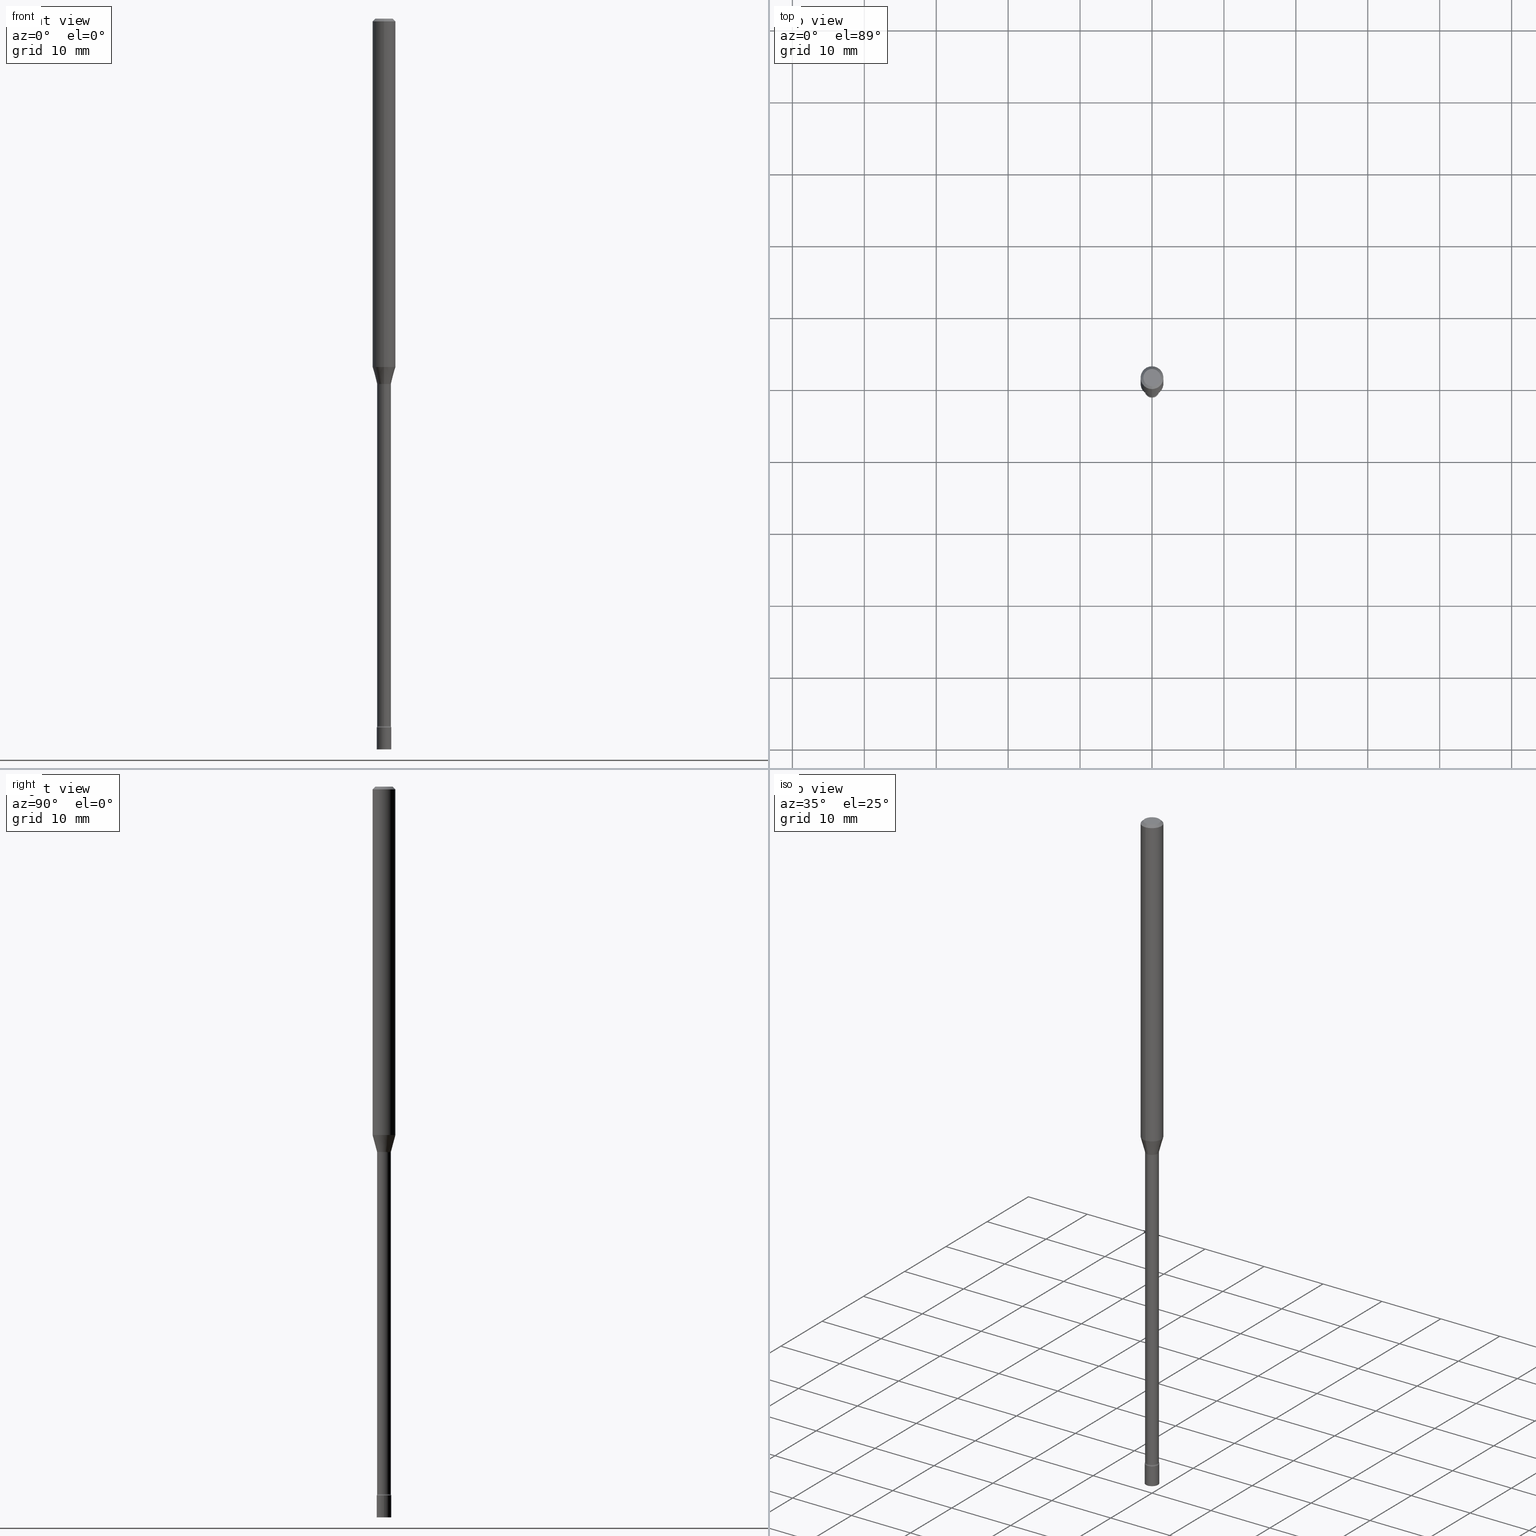
[diagram: canonical four-view strip — front | top / right | iso, engineering-drawing reading convention]
A machine part, canonical four-view strip (front | top / right | iso — engineering-drawing reading convention). The complete STEP part file that produces these views, byte-faithful:
ISO-10303-21;
HEADER;
FILE_DESCRIPTION (( 'STEP AP203' ),
    '1' );
FILE_NAME ('03688.STEP',
    '2024-03-08T22:37:42',
    ( '' ),
    ( '' ),
    'SwSTEP 2.0',
    'SolidWorks 2023',
    '' );
FILE_SCHEMA (( 'CONFIG_CONTROL_DESIGN' ));
ENDSEC;

DATA;
#1 = CARTESIAN_POINT ( 'NONE',  ( -3.673038368462044787E-16, -0.05260000000001375381, -3.871861204020250025 ) ) ;
#2 = AXIS2_PLACEMENT_3D ( 'NONE', #36, #193, #519 ) ;
#3 = ORGANIZATION ( 'UNSPECIFIED', 'UNSPECIFIED', '' ) ;
#4 = EDGE_CURVE ( 'NONE', #508, #461, #64, .T. ) ;
#5 = FACE_OUTER_BOUND ( 'NONE', #246, .T. ) ;
#6 = EDGE_CURVE ( 'NONE', #273, #189, #445, .T. ) ;
#7 = DIRECTION ( 'NONE',  ( -6.982962677686265922E-15, -1.000000000000000000, 3.491483579930689334E-15 ) ) ;
#8 = DIRECTION ( 'NONE',  ( -2.445467241242069311E-29, 3.491483579930688939E-15, 1.000000000000000000 ) ) ;
#9 = DIRECTION ( 'NONE',  ( -6.982962677686266711E-15, -1.000000000000000000, 0.000000000000000000 ) ) ;
#10 = DIRECTION ( 'NONE',  ( -2.445468806185136597E-29, 3.491481338843145583E-15, 1.000000000000000000 ) ) ;
#11 = CIRCLE ( 'NONE', #480, 0.01500000000000002720 ) ;
#12 = DIRECTION ( 'NONE',  ( 1.000000000000000000, -6.982962677686284065E-15, 0.000000000000000000 ) ) ;
#13 = ADVANCED_FACE ( 'NONE', ( #77 ), #206, .T. ) ;
#14 = ORIENTED_EDGE ( 'NONE', *, *, #125, .T. ) ;
#15 = CARTESIAN_POINT ( 'NONE',  ( 0.04000000000000000083, -1.382626610181885731E-14, -3.880000000000000338 ) ) ;
#16 = ORIENTED_EDGE ( 'NONE', *, *, #358, .F. ) ;
#17 = ORIENTED_EDGE ( 'NONE', *, *, #328, .F. ) ;
#18 = CARTESIAN_POINT ( 'NONE',  ( 0.04000000000000000083, -1.424524386248003395E-14, -4.000000000000000000 ) ) ;
#19 = EDGE_LOOP ( 'NONE', ( #72, #285, #184, #74 ) ) ;
#20 = LINE ( 'NONE', #428, #390 ) ;
#21 = ORIENTED_EDGE ( 'NONE', *, *, #520, .T. ) ;
#22 = LINE ( 'NONE', #216, #248 ) ;
#23 = DIRECTION ( 'NONE',  ( -2.445467241242069311E-29, 3.491483579930688939E-15, 1.000000000000000000 ) ) ;
#24 = ORIENTED_EDGE ( 'NONE', *, *, #279, .T. ) ;
#25 = AXIS2_PLACEMENT_3D ( 'NONE', #459, #507, #448 ) ;
#26 = DIRECTION ( 'NONE',  ( -2.445467241242069311E-29, 3.491483579930689334E-15, 1.000000000000000000 ) ) ;
#27 = CIRCLE ( 'NONE', #318, 0.03759999999999999454 ) ;
#28 = DIRECTION ( 'NONE',  ( -2.445468806185136597E-29, 3.491481338843145583E-15, 1.000000000000000000 ) ) ;
#29 = DIRECTION ( 'NONE',  ( -2.445468806185136877E-29, 3.491481338843145188E-15, 1.000000000000000000 ) ) ;
#30 = CALENDAR_DATE ( 2024, 8, 3 ) ;
#31 = FACE_OUTER_BOUND ( 'NONE', #442, .T. ) ;
#32 = CIRCLE ( 'NONE', #269, 0.04000000000000000083 ) ;
#33 = ORIENTED_EDGE ( 'NONE', *, *, #333, .F. ) ;
#34 = CARTESIAN_POINT ( 'NONE',  ( 3.668200861863111078E-31, -5.237225369896044256E-17, -0.01500000000000003067 ) ) ;
#35 = APPLICATION_PROTOCOL_DEFINITION ( 'international standard', 'config_control_design', 1994, #415 ) ;
#36 = CARTESIAN_POINT ( 'NONE',  ( 4.663681943469377038E-29, -6.658510346420442801E-15, -1.907071934891535037 ) ) ;
#37 = AXIS2_PLACEMENT_3D ( 'NONE', #504, #488, #217 ) ;
#38 = APPROVAL_PERSON_ORGANIZATION ( #433, #477, #233 ) ;
#39 = VERTEX_POINT ( 'NONE', #126 ) ;
#40 = EDGE_LOOP ( 'NONE', ( #261, #266, #326, #158 ) ) ;
#41 = CIRCLE ( 'NONE', #108, 0.06250000000000000000 ) ;
#42 = DIRECTION ( 'NONE',  ( -6.982962677686267499E-15, -1.000000000000000000, 0.000000000000000000 ) ) ;
#43 = CARTESIAN_POINT ( 'NONE',  ( 4.886269758092186834E-29, -6.976307161172895427E-15, -1.998092501787273045 ) ) ;
#44 = ADVANCED_BREP_SHAPE_REPRESENTATION ( '03688', ( #154, #339, #258 ), #124 ) ;
#45 = DIRECTION ( 'NONE',  ( -6.982962677686266711E-15, -1.000000000000000000, 3.491483579930689334E-15 ) ) ;
#46 = DIRECTION ( 'NONE',  ( -6.982962677686266711E-15, -1.000000000000000000, 3.491483579930689334E-15 ) ) ;
#47 = CARTESIAN_POINT ( 'NONE',  ( -0.04000000000000000083, -1.347221938073795369E-14, -3.880000000000000338 ) ) ;
#48 = EDGE_LOOP ( 'NONE', ( #368, #24, #323, #199 ) ) ;
#49 = CIRCLE ( 'NONE', #396, 0.04000000000000000083 ) ;
#50 = CARTESIAN_POINT ( 'NONE',  ( 3.668200861863111078E-31, -5.237225369896044256E-17, -0.01500000000000003067 ) ) ;
#51 = DIRECTION ( 'NONE',  ( 1.000000000000000000, -6.982962677686265922E-15, 4.876176775795935793E-29 ) ) ;
#52 = ORIENTED_EDGE ( 'NONE', *, *, #125, .F. ) ;
#53 = FACE_OUTER_BOUND ( 'NONE', #389, .T. ) ;
#54 = ORIENTED_EDGE ( 'NONE', *, *, #228, .T. ) ;
#55 = DIRECTION ( 'NONE',  ( 2.445467241242069311E-29, -3.491483579930688939E-15, -1.000000000000000000 ) ) ;
#56 = LINE ( 'NONE', #222, #444 ) ;
#57 = ORIENTED_EDGE ( 'NONE', *, *, #313, .T. ) ;
#58 = LINE ( 'NONE', #83, #177 ) ;
#59 = PERSON_AND_ORGANIZATION ( #360, #3 ) ;
#60 = ORIENTED_EDGE ( 'NONE', *, *, #470, .F. ) ;
#61 = PERSON_AND_ORGANIZATION_ROLE ( 'creator' ) ;
#62 = ADVANCED_FACE ( 'NONE', ( #400 ), #85, .T. ) ;
#63 =( CONVERSION_BASED_UNIT ( 'INCH', #191 ) LENGTH_UNIT ( ) NAMED_UNIT ( #229 ) );
#64 = CIRCLE ( 'NONE', #362, 0.04749999999999999362 ) ;
#65 = VECTOR ( 'NONE', #29, 39.37007874015748143 ) ;
#66 = LOCAL_TIME ( 17, 37, 42.00000000000000000, #236 ) ;
#67 =( NAMED_UNIT ( * ) PLANE_ANGLE_UNIT ( ) SI_UNIT ( $, .RADIAN. ) );
#68 = ADVANCED_FACE ( 'NONE', ( #163 ), #315, .T. ) ;
#69 = ADVANCED_FACE ( 'NONE', ( #404 ), #225, .F. ) ;
#70 = AXIS2_PLACEMENT_3D ( 'NONE', #495, #135, #298 ) ;
#71 = CONICAL_SURFACE ( 'NONE', #140, 0.06250000000000000000, 0.7853981633974483900 ) ;
#72 = ORIENTED_EDGE ( 'NONE', *, *, #279, .F. ) ;
#73 = CARTESIAN_POINT ( 'NONE',  ( 3.574424759935277553E-16, 0.03811111260565699932, -1.998092501787273045 ) ) ;
#74 = ORIENTED_EDGE ( 'NONE', *, *, #457, .T. ) ;
#75 = VERTEX_POINT ( 'NONE', #332 ) ;
#76 = DIRECTION ( 'NONE',  ( -6.982962677686265922E-15, -1.000000000000000000, 3.491483579930688939E-15 ) ) ;
#77 = FACE_OUTER_BOUND ( 'NONE', #161, .T. ) ;
#78 = CIRCLE ( 'NONE', #384, 0.03760000000000024434 ) ;
#79 = LOCAL_TIME ( 17, 37, 42.00000000000000000, #156 ) ;
#80 = PLANE ( 'NONE',  #149 ) ;
#81 = CARTESIAN_POINT ( 'NONE',  ( 3.668200861863111078E-31, -5.237225369896044256E-17, -0.01500000000000003067 ) ) ;
#82 = DIRECTION ( 'NONE',  ( -2.445467241242069311E-29, 3.491483579930688939E-15, 1.000000000000000000 ) ) ;
#83 = CARTESIAN_POINT ( 'NONE',  ( -2.625593966810044412E-16, -0.03760000000000011944, 1.312797826053943315E-16 ) ) ;
#84 = DIRECTION ( 'NONE',  ( -2.438088387897960049E-29, 3.491481338843145188E-15, 1.000000000000000000 ) ) ;
#85 = CYLINDRICAL_SURFACE ( 'NONE', #287, 0.03760000000000011944 ) ;
#86 = EDGE_LOOP ( 'NONE', ( #94, #492 ) ) ;
#87 = AXIS2_PLACEMENT_3D ( 'NONE', #122, #10, #490 ) ;
#88 = LINE ( 'NONE', #218, #204 ) ;
#89 = ORIENTED_EDGE ( 'NONE', *, *, #256, .T. ) ;
#90 = DIRECTION ( 'NONE',  ( -2.445467241242069311E-29, 3.491483579930688939E-15, 1.000000000000000000 ) ) ;
#91 = ORIENTED_EDGE ( 'NONE', *, *, #256, .F. ) ;
#92 = CARTESIAN_POINT ( 'NONE',  ( 4.886269758092186834E-29, -6.976307161172895427E-15, -1.998092501787273045 ) ) ;
#93 = DIRECTION ( 'NONE',  ( -2.445467241242069311E-29, 3.491483579930688939E-15, 1.000000000000000000 ) ) ;
#94 = ORIENTED_EDGE ( 'NONE', *, *, #240, .T. ) ;
#95 = ADVANCED_FACE ( 'NONE', ( #5 ), #487, .T. ) ;
#96 = DIRECTION ( 'NONE',  ( -2.445467241242069311E-29, 3.491483579930689334E-15, 1.000000000000000000 ) ) ;
#97 = CALENDAR_DATE ( 2024, 8, 3 ) ;
#98 = AXIS2_PLACEMENT_3D ( 'NONE', #1, #324, #482 ) ;
#99 = CARTESIAN_POINT ( 'NONE',  ( 0.000000000000000000, 0.000000000000000000, 0.000000000000000000 ) ) ;
#100 = FACE_OUTER_BOUND ( 'NONE', #86, .T. ) ;
#101 =( LENGTH_UNIT ( ) NAMED_UNIT ( * ) SI_UNIT ( $, .METRE. ) );
#102 = EDGE_CURVE ( 'NONE', #189, #355, #353, .T. ) ;
#103 = DIRECTION ( 'NONE',  ( 1.000000000000000000, -6.982962677686284065E-15, 0.000000000000000000 ) ) ;
#104 = DESIGN_CONTEXT ( 'detailed design', #173, 'design' ) ;
#105 = CALENDAR_DATE ( 2024, 8, 3 ) ;
#106 = CARTESIAN_POINT ( 'NONE',  ( 4.440892098500625669E-16, 0.06250000000000000000, -2.182177237456680587E-16 ) ) ;
#107 = AXIS2_PLACEMENT_3D ( 'NONE', #249, #294, #7 ) ;
#108 = AXIS2_PLACEMENT_3D ( 'NONE', #50, #465, #348 ) ;
#109 = AXIS2_PLACEMENT_3D ( 'NONE', #413, #142, #103 ) ;
#110 = EDGE_CURVE ( 'NONE', #189, #425, #342, .T. ) ;
#111 = CALENDAR_DATE ( 2024, 8, 3 ) ;
#112 = EDGE_CURVE ( 'NONE', #247, #425, #309, .T. ) ;
#113 = ADVANCED_FACE ( 'NONE', ( #129 ), #80, .T. ) ;
#114 = ORIENTED_EDGE ( 'NONE', *, *, #164, .F. ) ;
#115 = DIRECTION ( 'NONE',  ( -2.445467241242069311E-29, 3.491483579930688939E-15, 1.000000000000000000 ) ) ;
#116 = CIRCLE ( 'NONE', #153, 0.03811111260566397291 ) ;
#117 = ORIENTED_EDGE ( 'NONE', *, *, #151, .T. ) ;
#118 = ADVANCED_FACE ( 'NONE', ( #289 ), #299, .F. ) ;
#119 = DATE_AND_TIME ( #321, #79 ) ;
#120 = AXIS2_PLACEMENT_3D ( 'NONE', #81, #365, #411 ) ;
#121 = TOROIDAL_SURFACE ( 'NONE', #159, 0.05260000000000022990, 0.01499999999999998557 ) ;
#122 = CARTESIAN_POINT ( 'NONE',  ( 0.000000000000000000, 0.000000000000000000, 0.000000000000000000 ) ) ;
#123 = ADVANCED_FACE ( 'NONE', ( #349 ), #376, .T. ) ;
#124 =( GEOMETRIC_REPRESENTATION_CONTEXT ( 3 ) GLOBAL_UNCERTAINTY_ASSIGNED_CONTEXT ( ( #325 ) ) GLOBAL_UNIT_ASSIGNED_CONTEXT ( ( #63, #67, #307 ) ) REPRESENTATION_CONTEXT ( 'NONE', 'WORKASPACE' ) );
#125 = EDGE_CURVE ( 'NONE', #304, #505, #49, .T. ) ;
#126 = CARTESIAN_POINT ( 'NONE',  ( 2.671640686458930339E-16, 0.03759999999999300013, -2.001974787463811190 ) ) ;
#127 = CARTESIAN_POINT ( 'NONE',  ( -2.625593966809106161E-16, -0.03760000000001376130, -3.871861204020250025 ) ) ;
#128 = CARTESIAN_POINT ( 'NONE',  ( -4.364351673553912750E-16, -0.06250000000000005551, -0.01499999999999981209 ) ) ;
#129 = FACE_OUTER_BOUND ( 'NONE', #347, .T. ) ;
#130 = ORIENTED_EDGE ( 'NONE', *, *, #112, .F. ) ;
#131 = DIRECTION ( 'NONE',  ( -6.982962677686266711E-15, -1.000000000000000000, 0.000000000000000000 ) ) ;
#132 = ORIENTED_EDGE ( 'NONE', *, *, #369, .T. ) ;
#133 = ADVANCED_FACE ( 'NONE', ( #100 ), #392, .F. ) ;
#134 = DIRECTION ( 'NONE',  ( 1.839019923739596371E-15, 0.2588190451025244032, 0.9659258262890673130 ) ) ;
#135 = DIRECTION ( 'NONE',  ( 2.438088387897960049E-29, -3.491481338843145188E-15, -1.000000000000000000 ) ) ;
#136 = VECTOR ( 'NONE', #134, 39.37007874015748143 ) ;
#137 = ORIENTED_EDGE ( 'NONE', *, *, #110, .F. ) ;
#138 = AXIS2_PLACEMENT_3D ( 'NONE', #180, #23, #265 ) ;
#139 = DIRECTION ( 'NONE',  ( -4.851104656540964275E-15, -0.7071067811865500152, -0.7071067811865450192 ) ) ;
#140 = AXIS2_PLACEMENT_3D ( 'NONE', #378, #55, #260 ) ;
#141 = ORIENTED_EDGE ( 'NONE', *, *, #102, .F. ) ;
#142 = DIRECTION ( 'NONE',  ( -2.445468806185136597E-29, 3.491481338843145583E-15, 1.000000000000000000 ) ) ;
#143 = ORIENTED_EDGE ( 'NONE', *, *, #358, .T. ) ;
#144 = CARTESIAN_POINT ( 'NONE',  ( 2.756905814750144804E-16, 0.03759999999998672737, -3.871861204020250025 ) ) ;
#145 = DIRECTION ( 'NONE',  ( -2.445467241242069311E-29, 3.491483579930688939E-15, 1.000000000000000000 ) ) ;
#146 = DIRECTION ( 'NONE',  ( 6.982962677686265922E-15, 1.000000000000000000, -3.491483579930689334E-15 ) ) ;
#147 = ORIENTED_EDGE ( 'NONE', *, *, #157, .F. ) ;
#148 = APPROVAL_STATUS ( 'not_yet_approved' ) ;
#149 = AXIS2_PLACEMENT_3D ( 'NONE', #450, #84, #172 ) ;
#150 = APPROVAL_DATE_TIME ( #274, #477 ) ;
#151 = EDGE_CURVE ( 'NONE', #481, #296, #78, .T. ) ;
#152 = APPROVAL_DATE_TIME ( #426, #441 ) ;
#153 = AXIS2_PLACEMENT_3D ( 'NONE', #303, #93, #417 ) ;
#154 = MANIFOLD_SOLID_BREP ( 'Body-Move/Copy2[1]', #352 ) ;
#155 = DIRECTION ( 'NONE',  ( 7.105427357601001859E-15, 1.000000000000000000, 0.000000000000000000 ) ) ;
#156 = COORDINATED_UNIVERSAL_TIME_OFFSET ( 5, 0, .BEHIND. ) ;
#157 = EDGE_CURVE ( 'NONE', #223, #267, #32, .T. ) ;
#158 = ORIENTED_EDGE ( 'NONE', *, *, #235, .F. ) ;
#159 = AXIS2_PLACEMENT_3D ( 'NONE', #458, #499, #483 ) ;
#160 = CC_DESIGN_DATE_AND_TIME_ASSIGNMENT ( #316, #472, ( #427 ) ) ;
#161 = EDGE_LOOP ( 'NONE', ( #117, #451, #196, #301 ) ) ;
#162 = EDGE_CURVE ( 'NONE', #479, #304, #436, .T. ) ;
#163 = FACE_OUTER_BOUND ( 'NONE', #40, .T. ) ;
#164 = EDGE_CURVE ( 'NONE', #374, #505, #463, .T. ) ;
#165 = DIRECTION ( 'NONE',  ( -6.982962677686265922E-15, -1.000000000000000000, 3.491483579930688939E-15 ) ) ;
#166 = CARTESIAN_POINT ( 'NONE',  ( 9.488412896019229408E-29, -1.354695629013107419E-14, -3.880000000000000338 ) ) ;
#167 = VECTOR ( 'NONE', #449, 39.37007874015748143 ) ;
#168 = CARTESIAN_POINT ( 'NONE',  ( 4.886269758092186834E-29, -6.976307161172895427E-15, -1.998092501787273045 ) ) ;
#169 = CARTESIAN_POINT ( 'NONE',  ( -0.04000000000000000083, 2.842170943040400803E-16, -1.967574036101962509E-30 ) ) ;
#170 = DIRECTION ( 'NONE',  ( 4.937700262164548042E-15, 0.7071067811865451302, -0.7071067811865499042 ) ) ;
#171 = DIRECTION ( 'NONE',  ( -2.445467241242069311E-29, 3.491483579930688939E-15, 1.000000000000000000 ) ) ;
#172 = DIRECTION ( 'NONE',  ( 1.000000000000000000, -6.982962677686265922E-15, 4.876176775795935793E-29 ) ) ;
#173 = APPLICATION_CONTEXT ( 'configuration controlled 3d designs of mechanical parts and assemblies' ) ;
#174 = CARTESIAN_POINT ( 'NONE',  ( 4.895763760535303635E-29, -6.989862097865126997E-15, -2.001974787463811190 ) ) ;
#175 = ORIENTED_EDGE ( 'NONE', *, *, #327, .T. ) ;
#176 = CYLINDRICAL_SURFACE ( 'NONE', #87, 0.04000000000000000083 ) ;
#177 = VECTOR ( 'NONE', #96, 39.37007874015748143 ) ;
#178 = DIRECTION ( 'NONE',  ( 1.000000000000000000, -7.105427357601001070E-15, 4.926315535987489178E-29 ) ) ;
#179 = ORIENTED_EDGE ( 'NONE', *, *, #327, .F. ) ;
#180 = CARTESIAN_POINT ( 'NONE',  ( 4.663681943469377038E-29, -6.658510346420442801E-15, -1.907071934891535037 ) ) ;
#181 = EDGE_LOOP ( 'NONE', ( #377, #412, #130, #407 ) ) ;
#182 = DIRECTION ( 'NONE',  ( -6.982962677686266711E-15, -1.000000000000000000, 0.000000000000000000 ) ) ;
#183 = ADVANCED_FACE ( 'NONE', ( #31 ), #468, .T. ) ;
#184 = ORIENTED_EDGE ( 'NONE', *, *, #286, .T. ) ;
#185 = DATE_TIME_ROLE ( 'classification_date' ) ;
#186 = AXIS2_PLACEMENT_3D ( 'NONE', #398, #361, #155 ) ;
#187 = AXIS2_PLACEMENT_3D ( 'NONE', #416, #227, #264 ) ;
#188 = CARTESIAN_POINT ( 'NONE',  ( 2.842170943041348422E-16, 0.03999999999998644223, -3.880000000000000338 ) ) ;
#189 = VERTEX_POINT ( 'NONE', #322 ) ;
#190 = EDGE_CURVE ( 'NONE', #355, #247, #320, .T. ) ;
#191 = LENGTH_MEASURE_WITH_UNIT ( LENGTH_MEASURE( 0.02539999999999999897 ), #101 );
#192 = DIRECTION ( 'NONE',  ( -1.807323732225326195E-15, -0.2588190451025176309, 0.9659258262890690894 ) ) ;
#193 = DIRECTION ( 'NONE',  ( -2.445467241242069311E-29, 3.491483579930688939E-15, 1.000000000000000000 ) ) ;
#194 = AXIS2_PLACEMENT_3D ( 'NONE', #255, #28, #12 ) ;
#195 = CC_DESIGN_APPROVAL ( #477, ( #386 ) ) ;
#196 = ORIENTED_EDGE ( 'NONE', *, *, #457, .F. ) ;
#197 = EDGE_CURVE ( 'NONE', #355, #189, #501, .T. ) ;
#198 = DIRECTION ( 'NONE',  ( 1.000000000000000000, -6.982962677686284065E-15, 0.000000000000000000 ) ) ;
#199 = ORIENTED_EDGE ( 'NONE', *, *, #286, .F. ) ;
#200 = ORIENTED_EDGE ( 'NONE', *, *, #470, .T. ) ;
#201 = ORIENTED_EDGE ( 'NONE', *, *, #6, .T. ) ;
#202 = AXIS2_PLACEMENT_3D ( 'NONE', #174, #341, #408 ) ;
#203 = CARTESIAN_POINT ( 'NONE',  ( 0.000000000000000000, 0.000000000000000000, 0.000000000000000000 ) ) ;
#204 = VECTOR ( 'NONE', #139, 39.37007874015748143 ) ;
#205 = CARTESIAN_POINT ( 'NONE',  ( -3.673038368462486549E-16, -0.05260000000000698839, -2.001974787463810745 ) ) ;
#206 = CYLINDRICAL_SURFACE ( 'NONE', #107, 0.03760000000000011944 ) ;
#207 = APPROVAL_ROLE ( '' ) ;
#208 = CC_DESIGN_PERSON_AND_ORGANIZATION_ASSIGNMENT ( #516, #395, ( #220 ) ) ;
#209 = DIRECTION ( 'NONE',  ( -2.445467241242069311E-29, 3.491483579930688939E-15, 1.000000000000000000 ) ) ;
#210 = CARTESIAN_POINT ( 'NONE',  ( 9.468515796309946539E-29, -1.351853114042745669E-14, -3.871861204020250025 ) ) ;
#211 = CARTESIAN_POINT ( 'NONE',  ( 9.468509737067598490E-29, -1.351853981760736890E-14, -3.871861204020250025 ) ) ;
#212 = PLANE ( 'NONE',  #25 ) ;
#213 = AXIS2_PLACEMENT_3D ( 'NONE', #99, #354, #76 ) ;
#214 = CC_DESIGN_SECURITY_CLASSIFICATION ( #486, ( #386 ) ) ;
#215 = ORIENTED_EDGE ( 'NONE', *, *, #157, .T. ) ;
#216 = CARTESIAN_POINT ( 'NONE',  ( 2.671640686457984692E-16, 0.03760000000000011944, -1.312797826053943315E-16 ) ) ;
#217 = DIRECTION ( 'NONE',  ( -6.982962677686265922E-15, -1.000000000000000000, 3.491483579930688939E-15 ) ) ;
#218 = CARTESIAN_POINT ( 'NONE',  ( -4.287811248607203282E-16, -0.06250000000000005551, -0.01499999999999981209 ) ) ;
#219 = ORIENTED_EDGE ( 'NONE', *, *, #6, .F. ) ;
#220 = PRODUCT ( '03688', '03688', '', ( #314 ) ) ;
#221 = FACE_OUTER_BOUND ( 'NONE', #343, .T. ) ;
#222 = CARTESIAN_POINT ( 'NONE',  ( 4.364351673553919652E-16, 0.06249999999999995143, -0.01500000000000024751 ) ) ;
#223 = VERTEX_POINT ( 'NONE', #460 ) ;
#224 = CARTESIAN_POINT ( 'NONE',  ( 0.04000000000000000083, -2.793185071074506290E-16, 1.950470710318374387E-30 ) ) ;
#225 = TOROIDAL_SURFACE ( 'NONE', #363, 0.05260000000000022990, 0.01499999999999998557 ) ;
#226 = CIRCLE ( 'NONE', #330, 0.04749999999999999362 ) ;
#227 = DIRECTION ( 'NONE',  ( -2.445467241242069311E-29, 3.491483579930688939E-15, 1.000000000000000000 ) ) ;
#228 = EDGE_CURVE ( 'NONE', #273, #75, #116, .T. ) ;
#229 = DIMENSIONAL_EXPONENTS ( 1.000000000000000000, 0.000000000000000000, 0.000000000000000000, 0.000000000000000000, 0.000000000000000000, 0.000000000000000000, 0.000000000000000000 ) ;
#230 = DIRECTION ( 'NONE',  ( -2.445467241242069311E-29, 3.491483579930688939E-15, 1.000000000000000000 ) ) ;
#231 = DATE_AND_TIME ( #97, #502 ) ;
#232 = ORIENTED_EDGE ( 'NONE', *, *, #430, .T. ) ;
#233 = APPROVAL_ROLE ( '' ) ;
#234 = ORIENTED_EDGE ( 'NONE', *, *, #282, .F. ) ;
#235 = EDGE_CURVE ( 'NONE', #461, #425, #56, .T. ) ;
#236 = COORDINATED_UNIVERSAL_TIME_OFFSET ( 5, 0, .BEHIND. ) ;
#237 = CIRCLE ( 'NONE', #194, 0.04000000000000000083 ) ;
#238 = ADVANCED_FACE ( 'NONE', ( #335 ), #176, .T. ) ;
#239 = APPROVAL_STATUS ( 'not_yet_approved' ) ;
#240 = EDGE_CURVE ( 'NONE', #461, #508, #226, .T. ) ;
#241 = PERSON_AND_ORGANIZATION ( #360, #3 ) ;
#242 = DIRECTION ( 'NONE',  ( 2.445467241242068750E-29, -3.491483579930689334E-15, -1.000000000000000000 ) ) ;
#243 = CIRCLE ( 'NONE', #186, 0.01500000000000002720 ) ;
#244 = CARTESIAN_POINT ( 'NONE',  ( -4.364351673553916201E-16, -0.06250000000000000000, 2.182177237456680587E-16 ) ) ;
#245 = DIRECTION ( 'NONE',  ( -2.445468806185136597E-29, 3.491481338843145583E-15, 1.000000000000000000 ) ) ;
#246 = EDGE_LOOP ( 'NONE', ( #397, #453, #366, #52 ) ) ;
#247 = VERTEX_POINT ( 'NONE', #128 ) ;
#248 = VECTOR ( 'NONE', #337, 39.37007874015748143 ) ;
#249 = CARTESIAN_POINT ( 'NONE',  ( 0.000000000000000000, 0.000000000000000000, 0.000000000000000000 ) ) ;
#250 = CC_DESIGN_APPROVAL ( #441, ( #427 ) ) ;
#251 = DIRECTION ( 'NONE',  ( -2.445467241242069311E-29, 3.491483579930688939E-15, 1.000000000000000000 ) ) ;
#252 = APPROVAL ( #148, 'UNSPECIFIED' ) ;
#253 = DIRECTION ( 'NONE',  ( 7.105427357601001859E-15, 1.000000000000000000, 0.000000000000000000 ) ) ;
#254 = EDGE_LOOP ( 'NONE', ( #60, #385, #259, #215 ) ) ;
#255 = CARTESIAN_POINT ( 'NONE',  ( 9.781875224740546387E-29, -1.396592535537258233E-14, -4.000000000000000000 ) ) ;
#256 = EDGE_CURVE ( 'NONE', #267, #223, #431, .T. ) ;
#257 = AXIS2_PLACEMENT_3D ( 'NONE', #291, #447, #51 ) ;
#258 = AXIS2_PLACEMENT_3D ( 'NONE', #514, #312, #271 ) ;
#259 = ORIENTED_EDGE ( 'NONE', *, *, #282, .T. ) ;
#260 = DIRECTION ( 'NONE',  ( 6.982962677686265922E-15, 1.000000000000000000, -3.483106191921935554E-15 ) ) ;
#261 = ORIENTED_EDGE ( 'NONE', *, *, #4, .F. ) ;
#262 = CARTESIAN_POINT ( 'NONE',  ( 4.895766893511868006E-29, -6.989857611264368100E-15, -2.001974787463811190 ) ) ;
#263 = ORIENTED_EDGE ( 'NONE', *, *, #235, .T. ) ;
#264 = DIRECTION ( 'NONE',  ( -6.982962677686265922E-15, -1.000000000000000000, 3.491483579930688939E-15 ) ) ;
#265 = DIRECTION ( 'NONE',  ( -6.982962677686265922E-15, -1.000000000000000000, 4.370956789862821150E-15 ) ) ;
#266 = ORIENTED_EDGE ( 'NONE', *, *, #506, .T. ) ;
#267 = VERTEX_POINT ( 'NONE', #188 ) ;
#268 = DIRECTION ( 'NONE',  ( -6.982962677686266711E-15, -1.000000000000000000, 0.000000000000000000 ) ) ;
#269 = AXIS2_PLACEMENT_3D ( 'NONE', #166, #115, #281 ) ;
#270 = LOCAL_TIME ( 17, 37, 42.00000000000000000, #424 ) ;
#271 = DIRECTION ( 'NONE',  ( 1.000000000000000000, 0.000000000000000000, 0.000000000000000000 ) ) ;
#272 = ORIENTED_EDGE ( 'NONE', *, *, #240, .F. ) ;
#273 = VERTEX_POINT ( 'NONE', #73 ) ;
#274 = DATE_AND_TIME ( #111, #66 ) ;
#275 = CLOSED_SHELL ( 'NONE', ( #293, #13, #69, #68, #474, #394, #467, #183, #515, #133, #357, #319, #62, #118 ) ) ;
#276 = CIRCLE ( 'NONE', #202, 0.03759999999999999454 ) ;
#277 = CC_DESIGN_DATE_AND_TIME_ASSIGNMENT ( #231, #185, ( #486 ) ) ;
#278 = PERSON_AND_ORGANIZATION_ROLE ( 'creator' ) ;
#279 = EDGE_CURVE ( 'NONE', #273, #39, #243, .T. ) ;
#280 = ORIENTED_EDGE ( 'NONE', *, *, #506, .F. ) ;
#281 = DIRECTION ( 'NONE',  ( -6.982962677686265922E-15, -1.000000000000000000, 0.000000000000000000 ) ) ;
#282 = EDGE_CURVE ( 'NONE', #481, #223, #344, .T. ) ;
#283 = CIRCLE ( 'NONE', #423, 0.04000000000000000083 ) ;
#284 = SHAPE_DEFINITION_REPRESENTATION ( #373, #44 ) ;
#285 = ORIENTED_EDGE ( 'NONE', *, *, #369, .F. ) ;
#286 = EDGE_CURVE ( 'NONE', #75, #471, #11, .T. ) ;
#287 = AXIS2_PLACEMENT_3D ( 'NONE', #203, #251, #338 ) ;
#288 = AXIS2_PLACEMENT_3D ( 'NONE', #34, #443, #491 ) ;
#289 = FACE_OUTER_BOUND ( 'NONE', #19, .T. ) ;
#290 = AXIS2_PLACEMENT_3D ( 'NONE', #92, #375, #268 ) ;
#291 = CARTESIAN_POINT ( 'NONE',  ( 0.000000000000000000, 0.000000000000000000, 0.000000000000000000 ) ) ;
#292 = CARTESIAN_POINT ( 'NONE',  ( 9.468509737067598490E-29, -1.351853981760736890E-14, -3.871861204020250025 ) ) ;
#293 = ADVANCED_FACE ( 'NONE', ( #329 ), #454, .F. ) ;
#294 = DIRECTION ( 'NONE',  ( -2.445467241242069311E-29, 3.491483579930688939E-15, 1.000000000000000000 ) ) ;
#295 = CARTESIAN_POINT ( 'NONE',  ( 7.070776166625158470E-46, -1.009520735620161007E-31, -2.891380447621070331E-17 ) ) ;
#296 = VERTEX_POINT ( 'NONE', #144 ) ;
#297 = CARTESIAN_POINT ( 'NONE',  ( -3.773273898774340269E-16, -0.04749999999999999362, 1.369316655704970176E-16 ) ) ;
#298 = DIRECTION ( 'NONE',  ( -1.000000000000000000, 6.982962677686265922E-15, -4.876176775795935793E-29 ) ) ;
#299 = TOROIDAL_SURFACE ( 'NONE', #37, 0.05260000000000000092, 0.01500000000000002720 ) ;
#300 = LOCAL_TIME ( 17, 37, 42.00000000000000000, #473 ) ;
#301 = ORIENTED_EDGE ( 'NONE', *, *, #430, .F. ) ;
#302 = DIRECTION ( 'NONE',  ( -2.445467241242069311E-29, 3.491483579930688939E-15, 1.000000000000000000 ) ) ;
#303 = CARTESIAN_POINT ( 'NONE',  ( 4.886269758092186834E-29, -6.976307161172895427E-15, -1.998092501787273045 ) ) ;
#304 = VERTEX_POINT ( 'NONE', #47 ) ;
#305 = CARTESIAN_POINT ( 'NONE',  ( 3.840629472727447874E-16, 0.04749999999999999362, -1.947592745229184119E-16 ) ) ;
#306 = DIRECTION ( 'NONE',  ( -2.445467241242069311E-29, 3.491483579930689334E-15, 1.000000000000000000 ) ) ;
#307 =( NAMED_UNIT ( * ) SI_UNIT ( $, .STERADIAN. ) SOLID_ANGLE_UNIT ( ) );
#308 = ORIENTED_EDGE ( 'NONE', *, *, #520, .F. ) ;
#309 = CIRCLE ( 'NONE', #288, 0.06250000000000000000 ) ;
#310 = PERSON_AND_ORGANIZATION ( #360, #3 ) ;
#311 = FACE_OUTER_BOUND ( 'NONE', #254, .T. ) ;
#312 = DIRECTION ( 'NONE',  ( 0.000000000000000000, 0.000000000000000000, 1.000000000000000000 ) ) ;
#313 = EDGE_CURVE ( 'NONE', #75, #355, #20, .T. ) ;
#314 = MECHANICAL_CONTEXT ( 'NONE', #415, 'mechanical' ) ;
#315 = CONICAL_SURFACE ( 'NONE', #120, 0.06250000000000000000, 0.7853981633974483900 ) ;
#316 = DATE_AND_TIME ( #105, #270 ) ;
#317 = VECTOR ( 'NONE', #26, 39.37007874015748143 ) ;
#318 = AXIS2_PLACEMENT_3D ( 'NONE', #381, #145, #446 ) ;
#319 = ADVANCED_FACE ( 'NONE', ( #311 ), #121, .F. ) ;
#320 = LINE ( 'NONE', #244, #317 ) ;
#321 = CALENDAR_DATE ( 2024, 8, 3 ) ;
#322 = CARTESIAN_POINT ( 'NONE',  ( 4.440892098501088631E-16, 0.06249999999999330397, -1.907071934891535259 ) ) ;
#323 = ORIENTED_EDGE ( 'NONE', *, *, #333, .T. ) ;
#324 = DIRECTION ( 'NONE',  ( -1.000000000000000000, 6.982962677686265922E-15, -4.883557194083112340E-29 ) ) ;
#325 = UNCERTAINTY_MEASURE_WITH_UNIT (LENGTH_MEASURE( 1.000000000000000082E-05 ), #63, 'distance_accuracy_value', 'NONE');
#326 = ORIENTED_EDGE ( 'NONE', *, *, #112, .T. ) ;
#327 = EDGE_CURVE ( 'NONE', #505, #304, #283, .T. ) ;
#328 = EDGE_CURVE ( 'NONE', #479, #374, #237, .T. ) ;
#329 = FACE_OUTER_BOUND ( 'NONE', #48, .T. ) ;
#330 = AXIS2_PLACEMENT_3D ( 'NONE', #295, #209, #45 ) ;
#331 = CIRCLE ( 'NONE', #410, 0.03760000000000024434 ) ;
#332 = CARTESIAN_POINT ( 'NONE',  ( -2.661284769304012829E-16, -0.03811111260567094650, -1.998092501787273045 ) ) ;
#333 = EDGE_CURVE ( 'NONE', #39, #471, #276, .T. ) ;
#334 = CARTESIAN_POINT ( 'NONE',  ( 4.440892098501094548E-16, 0.06249999999999995143, -0.01500000000000024751 ) ) ;
#335 = FACE_OUTER_BOUND ( 'NONE', #379, .T. ) ;
#336 = ORIENTED_EDGE ( 'NONE', *, *, #190, .T. ) ;
#337 = DIRECTION ( 'NONE',  ( -2.445467241242069311E-29, 3.491483579930689334E-15, 1.000000000000000000 ) ) ;
#338 = DIRECTION ( 'NONE',  ( -6.982962677686265922E-15, -1.000000000000000000, 3.491483579930689334E-15 ) ) ;
#339 = MANIFOLD_SOLID_BREP ( 'Body-Move/Copy2[2]', #275 ) ;
#340 = ORIENTED_EDGE ( 'NONE', *, *, #162, .T. ) ;
#341 = DIRECTION ( 'NONE',  ( -2.445467241242069311E-29, 3.491483579930688939E-15, 1.000000000000000000 ) ) ;
#342 = LINE ( 'NONE', #106, #484 ) ;
#343 = EDGE_LOOP ( 'NONE', ( #147, #91 ) ) ;
#344 = CIRCLE ( 'NONE', #98, 0.01499999999999998557 ) ;
#345 = EDGE_LOOP ( 'NONE', ( #440, #418, #232, #33 ) ) ;
#346 = DIRECTION ( 'NONE',  ( 1.000000000000000000, -6.982962677686284065E-15, 0.000000000000000000 ) ) ;
#347 = EDGE_LOOP ( 'NONE', ( #175, #14 ) ) ;
#348 = DIRECTION ( 'NONE',  ( -6.982962677686265922E-15, -1.000000000000000000, 3.483106191921935554E-15 ) ) ;
#349 = FACE_OUTER_BOUND ( 'NONE', #399, .T. ) ;
#350 = CC_DESIGN_PERSON_AND_ORGANIZATION_ASSIGNMENT ( #59, #429, ( #386 ) ) ;
#351 = PERSON_AND_ORGANIZATION ( #360, #3 ) ;
#352 = CLOSED_SHELL ( 'NONE', ( #238, #113, #95, #123 ) ) ;
#353 = CIRCLE ( 'NONE', #2, 0.06250000000000000000 ) ;
#354 = DIRECTION ( 'NONE',  ( -2.445467241242069311E-29, 3.491483579930688939E-15, 1.000000000000000000 ) ) ;
#355 = VERTEX_POINT ( 'NONE', #405 ) ;
#356 = CC_DESIGN_PERSON_AND_ORGANIZATION_ASSIGNMENT ( #466, #61, ( #427 ) ) ;
#357 = ADVANCED_FACE ( 'NONE', ( #221 ), #212, .F. ) ;
#358 = EDGE_CURVE ( 'NONE', #425, #247, #41, .T. ) ;
#359 = APPLICATION_PROTOCOL_DEFINITION ( 'international standard', 'config_control_design', 1994, #173 ) ;
#360 = PERSON ( 'UNSPECIFIED', 'UNSPECIFIED', 'UNSPECIFIED', ('UNSPECIFIED'), ('UNSPECIFIED'), ('UNSPECIFIED') ) ;
#361 = DIRECTION ( 'NONE',  ( 1.000000000000000000, -7.105427357601001070E-15, 4.926315535987489178E-29 ) ) ;
#362 = AXIS2_PLACEMENT_3D ( 'NONE', #456, #90, #46 ) ;
#363 = AXIS2_PLACEMENT_3D ( 'NONE', #210, #8, #165 ) ;
#364 = AXIS2_PLACEMENT_3D ( 'NONE', #371, #178, #253 ) ;
#365 = DIRECTION ( 'NONE',  ( 2.445467241242069311E-29, -3.491483579930688939E-15, -1.000000000000000000 ) ) ;
#366 = ORIENTED_EDGE ( 'NONE', *, *, #164, .T. ) ;
#367 = DIRECTION ( 'NONE',  ( -1.000000000000000000, 6.982962677686265922E-15, -4.883557194083112340E-29 ) ) ;
#368 = ORIENTED_EDGE ( 'NONE', *, *, #228, .F. ) ;
#369 = EDGE_CURVE ( 'NONE', #75, #273, #469, .T. ) ;
#370 = DIRECTION ( 'NONE',  ( -2.445467241242069311E-29, 3.491483579930688939E-15, 1.000000000000000000 ) ) ;
#371 = CARTESIAN_POINT ( 'NONE',  ( 3.737454790099089453E-16, 0.05259999999998670600, -3.871861204020250025 ) ) ;
#372 = CIRCLE ( 'NONE', #109, 0.04000000000000000083 ) ;
#373 = PRODUCT_DEFINITION_SHAPE ( 'NONE', 'NONE',  #427 ) ;
#374 = VERTEX_POINT ( 'NONE', #18 ) ;
#375 = DIRECTION ( 'NONE',  ( -2.445467241242069311E-29, 3.491483579930688939E-15, 1.000000000000000000 ) ) ;
#376 = PLANE ( 'NONE',  #70 ) ;
#377 = ORIENTED_EDGE ( 'NONE', *, *, #197, .T. ) ;
#378 = CARTESIAN_POINT ( 'NONE',  ( 3.668200861863111078E-31, -5.237225369896044256E-17, -0.01500000000000003067 ) ) ;
#379 = EDGE_LOOP ( 'NONE', ( #21, #340, #179, #114 ) ) ;
#380 = DIRECTION ( 'NONE',  ( -2.445468806185136597E-29, 3.491481338843145583E-15, 1.000000000000000000 ) ) ;
#381 = CARTESIAN_POINT ( 'NONE',  ( 4.895763760535303635E-29, -6.989862097865126997E-15, -2.001974787463811190 ) ) ;
#382 = CARTESIAN_POINT ( 'NONE',  ( 9.488418967998330085E-29, -1.354694759471140570E-14, -3.880000000000000338 ) ) ;
#383 = EDGE_LOOP ( 'NONE', ( #513, #200, #89, #234 ) ) ;
#384 = AXIS2_PLACEMENT_3D ( 'NONE', #211, #370, #9 ) ;
#385 = ORIENTED_EDGE ( 'NONE', *, *, #151, .F. ) ;
#386 = PRODUCT_DEFINITION_FORMATION_WITH_SPECIFIED_SOURCE ( 'ANY', '', #220, .NOT_KNOWN. ) ;
#387 = CARTESIAN_POINT ( 'NONE',  ( -0.04000000000000000083, -1.347221938073795369E-14, -4.000000000000000000 ) ) ;
#388 = COORDINATED_UNIVERSAL_TIME_OFFSET ( 5, 0, .BEHIND. ) ;
#389 = EDGE_LOOP ( 'NONE', ( #219, #54, #57, #141 ) ) ;
#390 = VECTOR ( 'NONE', #192, 39.37007874015748854 ) ;
#391 = APPROVAL_ROLE ( '' ) ;
#392 = PLANE ( 'NONE',  #437 ) ;
#393 = PERSON_AND_ORGANIZATION ( #360, #3 ) ;
#394 = ADVANCED_FACE ( 'NONE', ( #452 ), #475, .T. ) ;
#395 = PERSON_AND_ORGANIZATION_ROLE ( 'design_owner' ) ;
#396 = AXIS2_PLACEMENT_3D ( 'NONE', #438, #245, #198 ) ;
#397 = ORIENTED_EDGE ( 'NONE', *, *, #162, .F. ) ;
#398 = CARTESIAN_POINT ( 'NONE',  ( 3.737454790098615644E-16, 0.05259999999999300652, -2.001974787463811190 ) ) ;
#399 = EDGE_LOOP ( 'NONE', ( #308, #17 ) ) ;
#400 = FACE_OUTER_BOUND ( 'NONE', #345, .T. ) ;
#401 = AXIS2_PLACEMENT_3D ( 'NONE', #43, #302, #131 ) ;
#402 = CONICAL_SURFACE ( 'NONE', #290, 0.03811111260566397291, 0.2617993877991496854 ) ;
#403 = CARTESIAN_POINT ( 'NONE',  ( 2.707957421369460558E-16, 0.03811111260565699932, -1.998092501787273045 ) ) ;
#404 = FACE_OUTER_BOUND ( 'NONE', #383, .T. ) ;
#405 = CARTESIAN_POINT ( 'NONE',  ( -4.364351673553452745E-16, -0.06250000000000668909, -1.907071934891534815 ) ) ;
#406 = DIRECTION ( 'NONE',  ( -6.982962677686265922E-15, -1.000000000000000000, 3.491483579930688939E-15 ) ) ;
#407 = ORIENTED_EDGE ( 'NONE', *, *, #190, .F. ) ;
#408 = DIRECTION ( 'NONE',  ( -6.982962677686265922E-15, -1.000000000000000000, 0.000000000000000000 ) ) ;
#409 = AXIS2_PLACEMENT_3D ( 'NONE', #422, #435, #512 ) ;
#410 = AXIS2_PLACEMENT_3D ( 'NONE', #292, #171, #498 ) ;
#411 = DIRECTION ( 'NONE',  ( 6.982962677686265922E-15, 1.000000000000000000, -3.483106191921935554E-15 ) ) ;
#412 = ORIENTED_EDGE ( 'NONE', *, *, #110, .T. ) ;
#413 = CARTESIAN_POINT ( 'NONE',  ( 9.781875224740546387E-29, -1.396592535537258233E-14, -4.000000000000000000 ) ) ;
#414 = ORIENTED_EDGE ( 'NONE', *, *, #102, .T. ) ;
#415 = APPLICATION_CONTEXT ( 'configuration controlled 3d designs of mechanical parts and assemblies' ) ;
#416 = CARTESIAN_POINT ( 'NONE',  ( 0.000000000000000000, 0.000000000000000000, 0.000000000000000000 ) ) ;
#417 = DIRECTION ( 'NONE',  ( -6.982962677686266711E-15, -1.000000000000000000, 0.000000000000000000 ) ) ;
#418 = ORIENTED_EDGE ( 'NONE', *, *, #494, .T. ) ;
#419 = PRODUCT_RELATED_PRODUCT_CATEGORY ( 'detail', '', ( #220 ) ) ;
#420 = ORIENTED_EDGE ( 'NONE', *, *, #313, .F. ) ;
#421 = CARTESIAN_POINT ( 'NONE',  ( -2.625593966809546444E-16, -0.03760000000000698894, -2.001974787463811190 ) ) ;
#422 = CARTESIAN_POINT ( 'NONE',  ( 9.488412896019229408E-29, -1.354695629013107419E-14, -3.880000000000000338 ) ) ;
#423 = AXIS2_PLACEMENT_3D ( 'NONE', #382, #380, #346 ) ;
#424 = COORDINATED_UNIVERSAL_TIME_OFFSET ( 5, 0, .BEHIND. ) ;
#425 = VERTEX_POINT ( 'NONE', #334 ) ;
#426 = DATE_AND_TIME ( #30, #300 ) ;
#427 = PRODUCT_DEFINITION ( 'UNKNOWN', '', #386, #104 ) ;
#428 = CARTESIAN_POINT ( 'NONE',  ( -2.661284769304012829E-16, -0.03811111260567094650, -1.998092501787273045 ) ) ;
#429 = PERSON_AND_ORGANIZATION_ROLE ( 'design_supplier' ) ;
#430 = EDGE_CURVE ( 'NONE', #481, #471, #58, .T. ) ;
#431 = CIRCLE ( 'NONE', #409, 0.04000000000000000083 ) ;
#432 = APPROVAL_PERSON_ORGANIZATION ( #310, #441, #391 ) ;
#433 = PERSON_AND_ORGANIZATION ( #360, #3 ) ;
#434 = SECURITY_CLASSIFICATION_LEVEL ( 'unclassified' ) ;
#435 = DIRECTION ( 'NONE',  ( -2.445467241242069311E-29, 3.491483579930688939E-15, 1.000000000000000000 ) ) ;
#436 = LINE ( 'NONE', #169, #167 ) ;
#437 = AXIS2_PLACEMENT_3D ( 'NONE', #464, #242, #146 ) ;
#438 = CARTESIAN_POINT ( 'NONE',  ( 9.488418967998330085E-29, -1.354694759471140570E-14, -3.880000000000000338 ) ) ;
#439 = CIRCLE ( 'NONE', #364, 0.01499999999999998557 ) ;
#440 = ORIENTED_EDGE ( 'NONE', *, *, #455, .F. ) ;
#441 = APPROVAL ( #518, 'UNSPECIFIED' ) ;
#442 = EDGE_LOOP ( 'NONE', ( #137, #414, #336, #16 ) ) ;
#443 = DIRECTION ( 'NONE',  ( -2.445467241242069311E-29, 3.491483579930688939E-15, 1.000000000000000000 ) ) ;
#444 = VECTOR ( 'NONE', #170, 39.37007874015748143 ) ;
#445 = LINE ( 'NONE', #403, #136 ) ;
#446 = DIRECTION ( 'NONE',  ( -6.982962677686265922E-15, -1.000000000000000000, 0.000000000000000000 ) ) ;
#447 = DIRECTION ( 'NONE',  ( -2.445468806185136597E-29, 3.491481338843145583E-15, 1.000000000000000000 ) ) ;
#448 = DIRECTION ( 'NONE',  ( -6.982962677686265922E-15, -1.000000000000000000, 3.491483579930689334E-15 ) ) ;
#449 = DIRECTION ( 'NONE',  ( -2.445468806185136877E-29, 3.491481338843145188E-15, 1.000000000000000000 ) ) ;
#450 = CARTESIAN_POINT ( 'NONE',  ( 9.488418967998330085E-29, -1.354694759471140570E-14, -3.880000000000000338 ) ) ;
#451 = ORIENTED_EDGE ( 'NONE', *, *, #455, .T. ) ;
#452 = FACE_OUTER_BOUND ( 'NONE', #485, .T. ) ;
#453 = ORIENTED_EDGE ( 'NONE', *, *, #328, .T. ) ;
#454 = TOROIDAL_SURFACE ( 'NONE', #517, 0.05260000000000000092, 0.01500000000000002720 ) ;
#455 = EDGE_CURVE ( 'NONE', #296, #39, #22, .T. ) ;
#456 = CARTESIAN_POINT ( 'NONE',  ( 7.070776166625158470E-46, -1.009520735620161007E-31, -2.891380447621070331E-17 ) ) ;
#457 = EDGE_CURVE ( 'NONE', #471, #39, #27, .T. ) ;
#458 = CARTESIAN_POINT ( 'NONE',  ( 9.468515796309946539E-29, -1.351853114042745669E-14, -3.871861204020250025 ) ) ;
#459 = CARTESIAN_POINT ( 'NONE',  ( 2.793185071075455388E-16, 0.03999999999998644917, -3.880000000000000338 ) ) ;
#460 = CARTESIAN_POINT ( 'NONE',  ( -2.793185071073556698E-16, -0.04000000000001353861, -3.880000000000000338 ) ) ;
#461 = VERTEX_POINT ( 'NONE', #305 ) ;
#462 = CC_DESIGN_PERSON_AND_ORGANIZATION_ASSIGNMENT ( #393, #278, ( #386 ) ) ;
#463 = LINE ( 'NONE', #224, #65 ) ;
#464 = CARTESIAN_POINT ( 'NONE',  ( 3.316907271900976096E-16, 0.04749999999999999362, -1.803023722848130510E-16 ) ) ;
#465 = DIRECTION ( 'NONE',  ( -2.445467241242069311E-29, 3.491483579930688939E-15, 1.000000000000000000 ) ) ;
#466 = PERSON_AND_ORGANIZATION ( #360, #3 ) ;
#467 = ADVANCED_FACE ( 'NONE', ( #53 ), #402, .T. ) ;
#468 = CYLINDRICAL_SURFACE ( 'NONE', #213, 0.06250000000000000000 ) ;
#469 = CIRCLE ( 'NONE', #401, 0.03811111260566397291 ) ;
#470 = EDGE_CURVE ( 'NONE', #296, #267, #439, .T. ) ;
#471 = VERTEX_POINT ( 'NONE', #421 ) ;
#472 = DATE_TIME_ROLE ( 'creation_date' ) ;
#473 = COORDINATED_UNIVERSAL_TIME_OFFSET ( 5, 0, .BEHIND. ) ;
#474 = ADVANCED_FACE ( 'NONE', ( #489 ), #493, .T. ) ;
#475 = CONICAL_SURFACE ( 'NONE', #510, 0.03811111260566397291, 0.2617993877991496854 ) ;
#476 = APPROVAL_PERSON_ORGANIZATION ( #351, #252, #207 ) ;
#477 = APPROVAL ( #239, 'UNSPECIFIED' ) ;
#478 = APPROVAL_DATE_TIME ( #119, #252 ) ;
#479 = VERTEX_POINT ( 'NONE', #387 ) ;
#480 = AXIS2_PLACEMENT_3D ( 'NONE', #205, #367, #42 ) ;
#481 = VERTEX_POINT ( 'NONE', #127 ) ;
#482 = DIRECTION ( 'NONE',  ( -6.982962677686266711E-15, -1.000000000000000000, 0.000000000000000000 ) ) ;
#483 = DIRECTION ( 'NONE',  ( -6.982962677686265922E-15, -1.000000000000000000, 3.491483579930688939E-15 ) ) ;
#484 = VECTOR ( 'NONE', #306, 39.37007874015748143 ) ;
#485 = EDGE_LOOP ( 'NONE', ( #132, #201, #497, #420 ) ) ;
#486 = SECURITY_CLASSIFICATION ( '', '', #434 ) ;
#487 = CYLINDRICAL_SURFACE ( 'NONE', #257, 0.04000000000000000083 ) ;
#488 = DIRECTION ( 'NONE',  ( -2.445467241242069311E-29, 3.491483579930688939E-15, 1.000000000000000000 ) ) ;
#489 = FACE_OUTER_BOUND ( 'NONE', #181, .T. ) ;
#490 = DIRECTION ( 'NONE',  ( 1.000000000000000000, -6.982962677686265922E-15, 4.876176775795935793E-29 ) ) ;
#491 = DIRECTION ( 'NONE',  ( -6.982962677686265922E-15, -1.000000000000000000, 3.483106191921935554E-15 ) ) ;
#492 = ORIENTED_EDGE ( 'NONE', *, *, #4, .T. ) ;
#493 = CYLINDRICAL_SURFACE ( 'NONE', #187, 0.06250000000000000000 ) ;
#494 = EDGE_CURVE ( 'NONE', #296, #481, #331, .T. ) ;
#495 = CARTESIAN_POINT ( 'NONE',  ( 2.793185071075484970E-16, 0.03999999999998603284, -4.000000000000000000 ) ) ;
#496 = CC_DESIGN_PERSON_AND_ORGANIZATION_ASSIGNMENT ( #241, #509, ( #486 ) ) ;
#497 = ORIENTED_EDGE ( 'NONE', *, *, #197, .F. ) ;
#498 = DIRECTION ( 'NONE',  ( -6.982962677686266711E-15, -1.000000000000000000, 0.000000000000000000 ) ) ;
#499 = DIRECTION ( 'NONE',  ( -2.445467241242069311E-29, 3.491483579930688939E-15, 1.000000000000000000 ) ) ;
#500 = EDGE_LOOP ( 'NONE', ( #280, #272, #263, #143 ) ) ;
#501 = CIRCLE ( 'NONE', #138, 0.06250000000000000000 ) ;
#502 = LOCAL_TIME ( 17, 37, 42.00000000000000000, #388 ) ;
#503 = FACE_OUTER_BOUND ( 'NONE', #500, .T. ) ;
#504 = CARTESIAN_POINT ( 'NONE',  ( 4.895766893511868006E-29, -6.989857611264368100E-15, -2.001974787463811190 ) ) ;
#505 = VERTEX_POINT ( 'NONE', #15 ) ;
#506 = EDGE_CURVE ( 'NONE', #508, #247, #88, .T. ) ;
#507 = DIRECTION ( 'NONE',  ( -2.445467241242068750E-29, 3.491483579930689334E-15, 1.000000000000000000 ) ) ;
#508 = VERTEX_POINT ( 'NONE', #297 ) ;
#509 = PERSON_AND_ORGANIZATION_ROLE ( 'classification_officer' ) ;
#510 = AXIS2_PLACEMENT_3D ( 'NONE', #168, #82, #182 ) ;
#511 = CC_DESIGN_APPROVAL ( #252, ( #486 ) ) ;
#512 = DIRECTION ( 'NONE',  ( -6.982962677686265922E-15, -1.000000000000000000, 0.000000000000000000 ) ) ;
#513 = ORIENTED_EDGE ( 'NONE', *, *, #494, .F. ) ;
#514 = CARTESIAN_POINT ( 'NONE',  ( 0.000000000000000000, 0.000000000000000000, 0.000000000000000000 ) ) ;
#515 = ADVANCED_FACE ( 'NONE', ( #503 ), #71, .T. ) ;
#516 = PERSON_AND_ORGANIZATION ( #360, #3 ) ;
#517 = AXIS2_PLACEMENT_3D ( 'NONE', #262, #230, #406 ) ;
#518 = APPROVAL_STATUS ( 'not_yet_approved' ) ;
#519 = DIRECTION ( 'NONE',  ( -6.982962677686265922E-15, -1.000000000000000000, 4.370956789862821150E-15 ) ) ;
#520 = EDGE_CURVE ( 'NONE', #374, #479, #372, .T. ) ;
ENDSEC;
END-ISO-10303-21;
